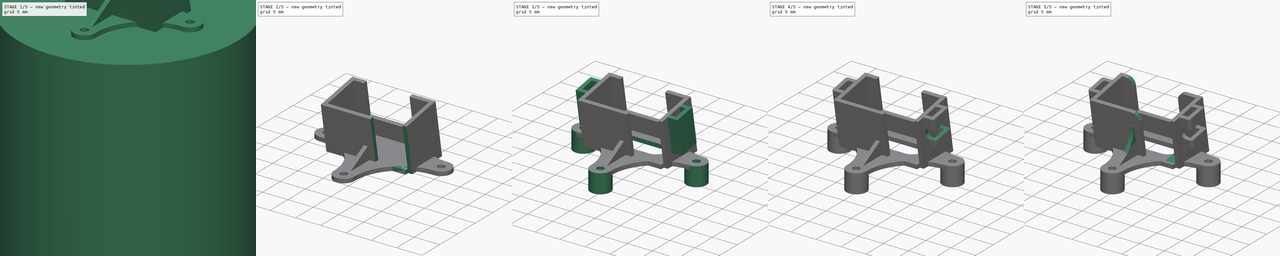
[diagram: build sequence overview — one tinted view per stage of 5, left to right]
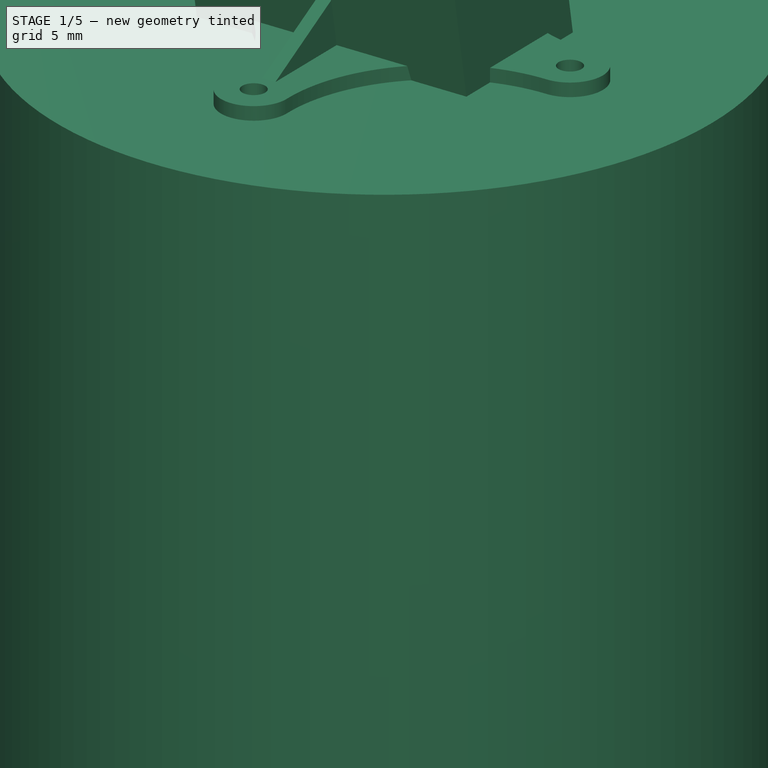
[diagram: stage 1 of 5 — iso view after this stage's code; geometry added in this stage tinted green]
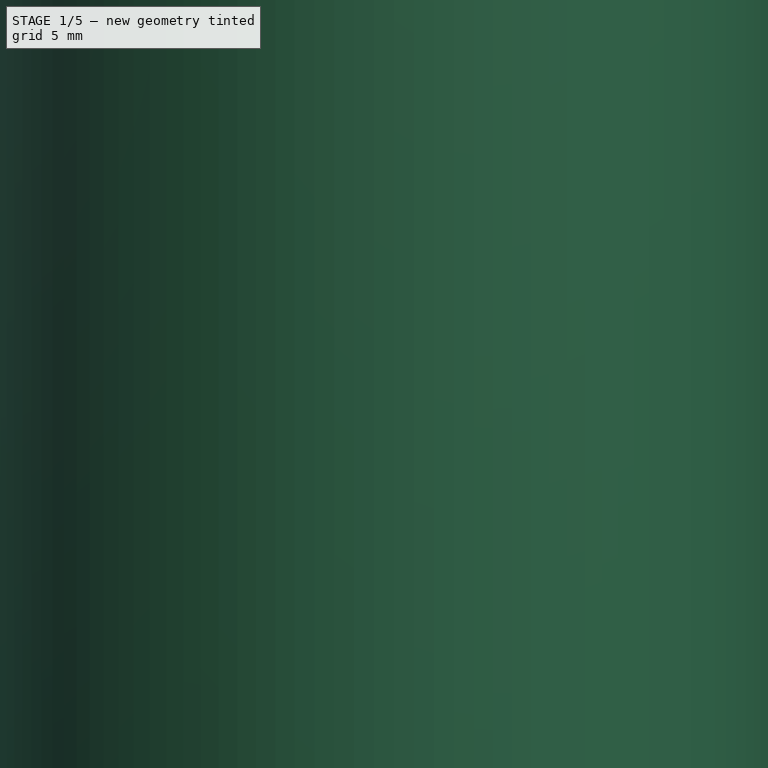
[diagram: stage 1 of 5 — front view after this stage's code; geometry added in this stage tinted green]
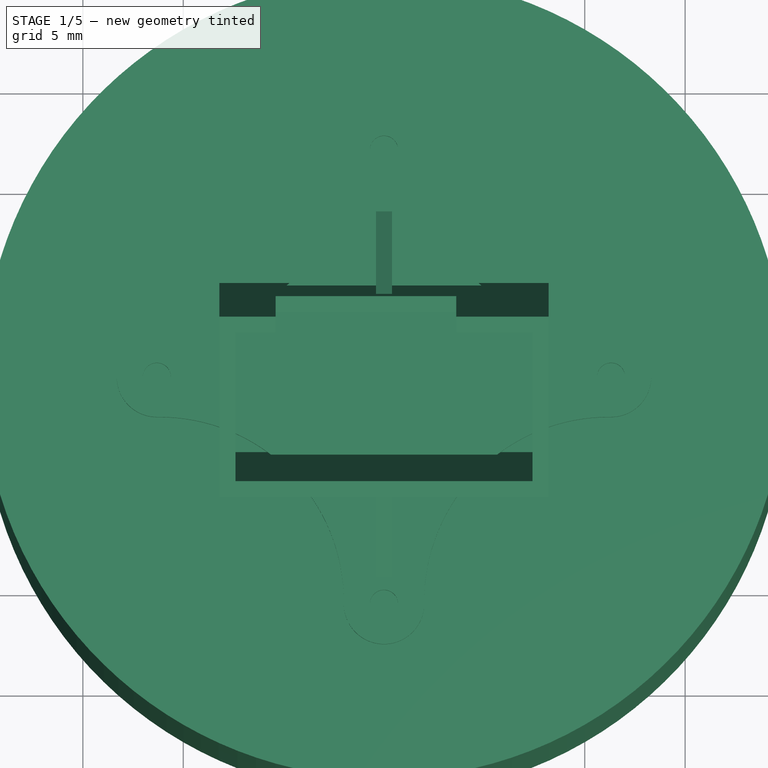
[diagram: stage 1 of 5 — top view after this stage's code; geometry added in this stage tinted green]
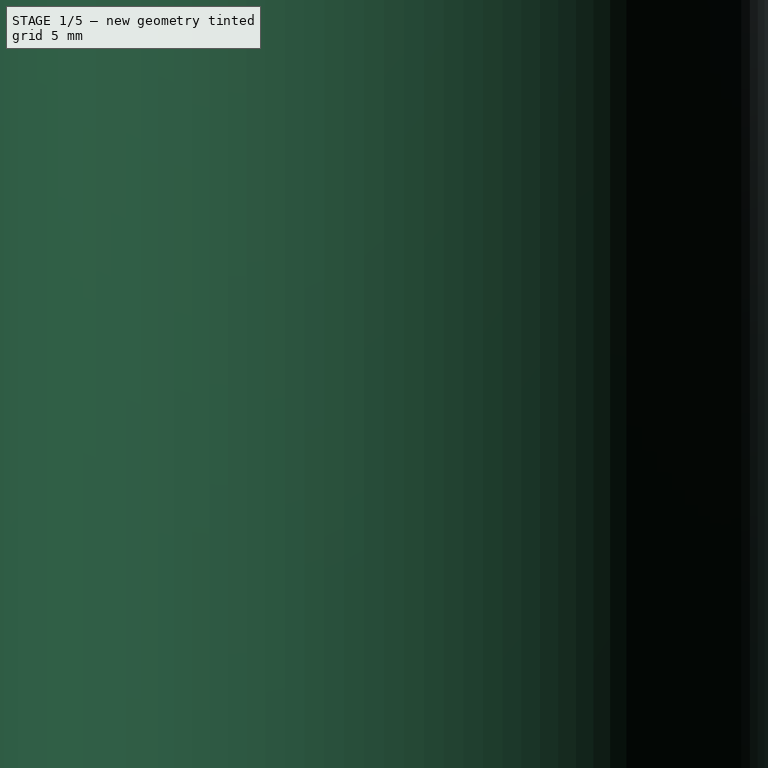
[diagram: stage 1 of 5 — right view after this stage's code; geometry added in this stage tinted green]
FCSTD DOCUMENT  (FreeCAD 0.16R6707 (Git))
Label: cam_holder_10
License: All rights reserved
LicenseURL: http://en.wikipedia.org/wiki/All_rights_reserved
objects: Sketcher::SketchObject×13, PartDesign::Pad×9, PartDesign::Fillet×5, PartDesign::Pocket×4, Part::MultiFuse×2, PartDesign::Mirrored×2, Part::Cut×1
note: 49 computed .brp shape members not serialized (recipe doc carries the construction recipe); baked Part::Feature solids carry a one-line shape summary decoded from their .brp

FEATURE [Sketcher::SketchObject] Sketch
  sketch-geometry (24):
    g0: Circle [constr] CenterX=0 CenterY=11.3137 CenterZ=0 NormalX=0 NormalY=0 NormalZ=1 Radius=2
    g1: Circle CenterX=0 CenterY=11.3137 CenterZ=0 NormalX=0 NormalY=0 NormalZ=1 Radius=0.7
    g2: Circle CenterX=11.3137 CenterY=0 CenterZ=0 NormalX=0 NormalY=0 NormalZ=1 Radius=0.7
    g3: Circle [constr] CenterX=11.3137 CenterY=0 CenterZ=0 NormalX=0 NormalY=0 NormalZ=1 Radius=2
    g4: Circle CenterX=0 CenterY=-11.3137 CenterZ=0 NormalX=0 NormalY=0 NormalZ=1 Radius=0.7
    g5: Circle [constr] CenterX=0 CenterY=-11.3137 CenterZ=0 NormalX=0 NormalY=0 NormalZ=1 Radius=2
    g6: Circle CenterX=-11.3137 CenterY=0 CenterZ=0 NormalX=0 NormalY=0 NormalZ=1 Radius=0.7
    g7: Circle [constr] CenterX=-11.3137 CenterY=0 CenterZ=0 NormalX=0 NormalY=0 NormalZ=1 Radius=2
    g8: LineSegment [constr] StartX=-11.3137 StartY=0 StartZ=0 EndX=0 EndY=11.3137 EndZ=0
    g9: LineSegment [constr] StartX=11.3137 StartY=0 StartZ=0 EndX=0 EndY=11.3137 EndZ=0
    g10: LineSegment [constr] StartX=0 StartY=-11.3137 StartZ=0 EndX=11.3137 EndY=0 EndZ=0
    g11: LineSegment [constr] StartX=0 StartY=-11.3137 StartZ=0 EndX=-11.3137 EndY=0 EndZ=0
    g12: ArcOfCircle CenterX=-11.2017 CenterY=11.2017 CenterZ=0 NormalX=0 NormalY=0 NormalZ=1 Radius=9.20224 StartAngle=4.70239 EndAngle=6.29319
    g13: LineSegment [constr] StartX=-12.7279 StartY=1.41421 StartZ=0 EndX=-1.41421 EndY=12.7279 EndZ=0
    g14: LineSegment [constr] StartX=-1.9999 StartY=11.2937 StartZ=0 EndX=-11.2937 EndY=1.9999 EndZ=0
    g15: LineSegment [constr] StartX=-5.44797 StartY=8.69417 StartZ=0 EndX=-5.0237 EndY=8.2699 EndZ=0
    g16: ArcOfCircle CenterX=11.2017 CenterY=11.2017 CenterZ=0 NormalX=0 NormalY=0 NormalZ=1 Radius=9.20224 StartAngle=3.13159 EndAngle=4.72239
    g17: ArcOfCircle CenterX=0 CenterY=11.3137 CenterZ=0 NormalX=0 NormalY=0 NormalZ=1 Radius=2 StartAngle=6.27318 EndAngle=9.43478
    g18: Circle [constr] CenterX=0 CenterY=0 CenterZ=0 NormalX=0 NormalY=0 NormalZ=1 Radius=15.8416
    g19: ArcOfCircle CenterX=-11.2017 CenterY=-11.2017 CenterZ=0 NormalX=0 NormalY=0 NormalZ=1 Radius=9.20224 StartAngle=6.27318 EndAngle=7.86398
    g20: ArcOfCircle CenterX=11.2017 CenterY=-11.2017 CenterZ=0 NormalX=0 NormalY=0 NormalZ=1 Radius=9.20224 StartAngle=1.5608 EndAngle=3.15159
    g21: ArcOfCircle CenterX=11.3137 CenterY=0 CenterZ=0 NormalX=0 NormalY=0 NormalZ=1 Radius=2 StartAngle=4.70239 EndAngle=7.86398
    g22: ArcOfCircle CenterX=0 CenterY=-11.3137 CenterZ=0 NormalX=0 NormalY=0 NormalZ=1 Radius=2 StartAngle=3.13159 EndAngle=6.29319
    g23: ArcOfCircle CenterX=-11.3137 CenterY=0 CenterZ=0 NormalX=0 NormalY=0 NormalZ=1 Radius=2 StartAngle=1.5608 EndAngle=4.7224
  constraints (73):
    c: PointOnObject(g0,g-2)
    c: Coincident(g1,g0)
    c: Radius(g1) = 0.7
    c: Radius(g0) = 2
    c: PointOnObject(g2,g-1)
    c: Coincident(g3,g2)
    c: PointOnObject(g4,g-2)
    c: Coincident(g5,g4)
    c: PointOnObject(g6,g-1)
    c: Coincident(g7,g6)
    c: Equal(g7,g3)
    c: Equal(g3,g5)
    c: Equal(g5,g0)
    c: Equal(g6,g2)
    c: Equal(g2,g4)
    c: Equal(g4,g1)
    c: Coincident(g8,g6)
    c: Coincident(g8,g0)
    c: Coincident(g9,g0)
    c: Coincident(g10,g4)
    c: Coincident(g11,g4)
    c: Coincident(g11,g6)
    c: Equal(g11,g8)
    c: Equal(g8,g9)
    c: Equal(g9,g10)
    c: Coincident(g2,g10)
    c: Coincident(g2,g9)
    c: Perpendicular(g10,g9)
    c: Distance(g8) = 16
    c: Tangent(g12,g7)
    c: PointOnObject(g13,g7)
    c: PointOnObject(g13,g0)
    c: Tangent(g13,g7)
    c: Tangent(g13,g0)
    c: PointOnObject(g15,g13)
    c: PointOnObject(g15,g14)
    c: Perpendicular(g13,g15)
    c: Perpendicular(g14,g15)
    c: PointOnObject(g12,g14)
    c: Coincident(g12,g14)
    c: Coincident(g12,g14)
    c: PointOnObject(g12,g0)
    c: Distance(g15) = 0.6
    c: PointOnObject(g16,g3)
    c: Tangent(g0,g16)
    c: Coincident(g17,g0)
    c: Coincident(g17,g12)
    c: Coincident(g17,g16)
    c: Tangent(g16,g3)
    c: Tangent(g12,g0)
    c: PointOnObject(g12,g18)
    c: Coincident(g18,g-1)
    c: PointOnObject(g16,g18)
    c: PointOnObject(g19,g7)
    c: PointOnObject(g19,g5)
    c: PointOnObject(g19,g18)
    c: Tangent(g7,g19)
    c: Tangent(g19,g5)
    c: PointOnObject(g20,g5)
    c: PointOnObject(g20,g3)
    c: Tangent(g20,g5)
    c: Tangent(g20,g3)
    c: PointOnObject(g20,g18)
    c: Coincident(g17,g14)
    c: Coincident(g21,g2)
    c: Coincident(g21,g16)
    c: Coincident(g21,g20)
    c: Coincident(g22,g4)
    c: Coincident(g22,g20)
    c: Coincident(g22,g19)
    c: Coincident(g23,g6)
    c: Coincident(g23,g12)
    c: Coincident(g23,g19)
FEATURE [PartDesign::Pad] Pad
  Length = 0.8
  Length2 = 100
  Sketch = -> Sketch
  Type = 0
FEATURE [Sketcher::SketchObject] Sketch001
  Placement = pos=(0,0,0.4) rot=(1,0,0;0.174533rad)
  sketch-geometry (10):
    g0: LineSegment StartX=-7.4 StartY=3.75 StartZ=0 EndX=7.4 EndY=3.75 EndZ=0
    g1: LineSegment StartX=7.4 StartY=3.75 StartZ=0 EndX=7.4 EndY=-3.75 EndZ=0
    g2: LineSegment StartX=7.4 StartY=-3.75 StartZ=0 EndX=-7.4 EndY=-3.75 EndZ=0
    g3: LineSegment StartX=-7.4 StartY=-3.75 StartZ=0 EndX=-7.4 EndY=3.75 EndZ=0
    g4: LineSegment StartX=-8.2 StartY=4.55 StartZ=0 EndX=8.2 EndY=4.55 EndZ=0
    g5: LineSegment StartX=8.2 StartY=4.55 StartZ=0 EndX=8.2 EndY=-4.55 EndZ=0
    g6: LineSegment StartX=8.2 StartY=-4.55 StartZ=0 EndX=-8.2 EndY=-4.55 EndZ=0
    g7: LineSegment StartX=-8.2 StartY=-4.55 StartZ=0 EndX=-8.2 EndY=4.55 EndZ=0
    g8: LineSegment [constr] StartX=7.4 StartY=3.75 StartZ=0 EndX=7.4 EndY=4.55 EndZ=0
    g9: LineSegment [constr] StartX=7.4 StartY=-3.75 StartZ=0 EndX=8.2 EndY=-3.75 EndZ=0
  constraints (32):
    c: Coincident(g0,g1)
    c: Coincident(g1,g2)
    c: Coincident(g2,g3)
    c: Coincident(g3,g0)
    c: Horizontal(g0)
    c: Horizontal(g2)
    c: Vertical(g1)
    c: Vertical(g3)
    c: DistanceX(g0,g0) = 14.8
    c: DistanceY(g3,g3) = 7.5
    c: Symmetric(g0,g0,g-2)
    c: Symmetric(g0,g2,g-1)
    c: Coincident(g4,g5)
    c: Coincident(g5,g6)
    c: Coincident(g6,g7)
    c: Coincident(g7,g4)
    c: Horizontal(g4)
    c: Horizontal(g6)
    c: Vertical(g5)
    c: Vertical(g7)
    c: Symmetric(g5,g4,g-1)
    c: Symmetric(g4,g4,g-2)
    c: Vertical(g8)
    c: DistanceY(g8,g8) = 0.8
    c: PointOnObject(g8,g4)
    c: PointOnObject(g8,g0)
    c: PointOnObject(g9,g1)
    c: PointOnObject(g9,g5)
    c: Horizontal(g9)
    c: DistanceX(g9,g9) = 0.8
    c: Coincident(g9,g1)
    c: Coincident(g8,g0)
FEATURE [PartDesign::Pad] Pad001
  Length = 19
  Length2 = 100
  Midplane = true
  Placement = pos=(0,0,0.4) rot=(1,0,0;0.174533rad)
  Reversed = true
  Sketch = -> Sketch001
  Type = 0
FEATURE [Sketcher::SketchObject] Sketch002
  ExternalGeometry = -> [Pad001]
  Placement = pos=(0,-1.64966,9.75567) rot=(1,0,0;0.174533rad)
  Support = -> Pad001 [Face10]
  sketch-geometry (4):
    g0: LineSegment StartX=3.6 StartY=4.55 StartZ=0 EndX=3.6 EndY=3.75 EndZ=0
    g1: LineSegment StartX=-5.4 StartY=4.55 StartZ=0 EndX=3.6 EndY=4.55 EndZ=0
    g2: LineSegment StartX=-5.4 StartY=3.75 StartZ=0 EndX=3.6 EndY=3.75 EndZ=0
    g3: LineSegment StartX=-5.4 StartY=3.75 StartZ=0 EndX=-5.4 EndY=4.55 EndZ=0
  constraints (12):
    c: Vertical(g0)
    c: Coincident(g1,g0)
    c: Horizontal(g1)
    c: DistanceX(g1,g1) = 9
    c: Coincident(g2,g0)
    c: Coincident(g3,g2)
    c: Coincident(g3,g1)
    c: Vertical(g3)
    c: Perpendicular(g3,g2)
    c: PointOnObject(g-3,g1)
    c: PointOnObject(g-5,g2)
    c: Distance(g-5,g3) = 2
FEATURE [PartDesign::Pocket] Pocket
  Length = 6.5
  Placement = pos=(0,0,0.4) rot=(1,0,0;0.174533rad)
  Sketch = -> Sketch002
  Type = 0
FEATURE [Sketcher::SketchObject] Sketch004
  Placement = pos=(0,0,0) rot=(1,0,0;3.14159rad)
  Support = -> Pad [Face13]
  sketch-geometry (1):
    g0: Circle CenterX=0 CenterY=0 CenterZ=0 NormalX=0 NormalY=0 NormalZ=1 Radius=20
  constraints (2):
    c: Radius(g0) = 20
    c: Coincident(g0,g-1)
FEATURE [PartDesign::Pad] Pad002
  Length = 50
  Length2 = 100
  Sketch = -> Sketch004
  Type = 0
FEATURE [Sketcher::SketchObject] Sketch007
  Placement = pos=(0,0,0) rot=(0.57735,0.57735,0.57735;2.0944rad)
  sketch-geometry (16):
    g0: LineSegment StartX=-10 StartY=0 StartZ=0 EndX=-10 EndY=-1 EndZ=0
    g1: LineSegment StartX=-4.5 StartY=0 StartZ=0 EndX=-10 EndY=-1 EndZ=0
    g2: LineSegment [constr] StartX=-10 StartY=0 StartZ=0 EndX=-4.5 EndY=0 EndZ=0
    g3: LineSegment [constr] StartX=-4.5 StartY=0 StartZ=0 EndX=0 EndY=0 EndZ=0
    g4: LineSegment StartX=-10 StartY=0 StartZ=0 EndX=-10 EndY=0.8 EndZ=0
    g5: LineSegment StartX=-10 StartY=0.8 StartZ=0 EndX=-5.11125 EndY=3.46659 EndZ=0
    g6: LineSegment [constr] StartX=-4.5 StartY=0 StartZ=0 EndX=-4.5 EndY=3.8 EndZ=0
    g7: LineSegment StartX=9.5 StartY=-1.26646 StartZ=0 EndX=9.5 EndY=0 EndZ=0
    g8: LineSegment StartX=9.5 StartY=0 StartZ=0 EndX=3.2 EndY=4 EndZ=0
    g9: LineSegment [constr] StartX=3.2 StartY=4 StartZ=0 EndX=3.2 EndY=0 EndZ=0
    g10: LineSegment StartX=3.2 StartY=0 StartZ=0 EndX=9.5 EndY=-1.26646 EndZ=0
    g11: LineSegment [constr] StartX=0 StartY=0 StartZ=0 EndX=3.2 EndY=0 EndZ=0
    g12: LineSegment [constr] StartX=3.2 StartY=0 StartZ=0 EndX=9.5 EndY=0 EndZ=0
    g13: LineSegment StartX=-4.5 StartY=0 StartZ=0 EndX=-5.11125 EndY=3.46659 EndZ=0
    g14: LineSegment StartX=3.2 StartY=4 StartZ=0 EndX=3.90531 EndY=0 EndZ=0
    g15: LineSegment StartX=3.2 StartY=0 StartZ=0 EndX=3.90531 EndY=0 EndZ=0
  constraints (43):
    c: PointOnObject(g0,g-1)
    c: Vertical(g0)
    c: Coincident(g2,g1)
    c: Horizontal(g2)
    c: Coincident(g0,g1)
    c: DistanceY(g0,g0) = 1
    c: Coincident(g3,g1)
    c: Coincident(g3,g-1)
    c: Horizontal(g3)
    c: DistanceX(g3,g3) = 4.5
    c: Coincident(g4,g0)
    c: Vertical(g4)
    c: Coincident(g5,g4)
    c: Coincident(g6,g1)
    c: Vertical(g6)
    c: DistanceY(g4,g4) = 0.8
    c: DistanceY(g6,g6) = 3.8
    c: Coincident(g2,g0)
    c: DistanceX(g2,g2) = 5.5
    c: Vertical(g7)
    c: Coincident(g8,g7)
    c: Coincident(g9,g8)
    c: PointOnObject(g9,g-1)
    c: Coincident(g10,g9)
    c: Coincident(g10,g7)
    c: Vertical(g9)
    c: Coincident(g11,g-1)
    c: Coincident(g11,g9)
    c: DistanceX(g11,g11) = 3.2
    c: PointOnObject(g7,g11)
    c: Coincident(g12,g9)
    c: Coincident(g12,g7)
    c: DistanceX(g12,g12) = 6.3
    c: Coincident(g13,g1)
    c: Angle(g6,g13) = 0.174533
    c: Coincident(g5,g13)
    c: Coincident(g14,g8)
    c: Coincident(g15,g9)
    c: Coincident(g15,g14)
    c: Horizontal(g15)
    c: Angle(g9,g14) = 0.174533
    c: DistanceY(g9,g9) = 4
    c: PointOnObject(g6,g5)
FEATURE [PartDesign::Pad] Pad005
  Length = 0.8
  Length2 = 100
  Midplane = true
  Placement = pos=(0,0,0) rot=(0.57735,0.57735,0.57735;2.0944rad)
  Sketch = -> Sketch007
  Type = 0
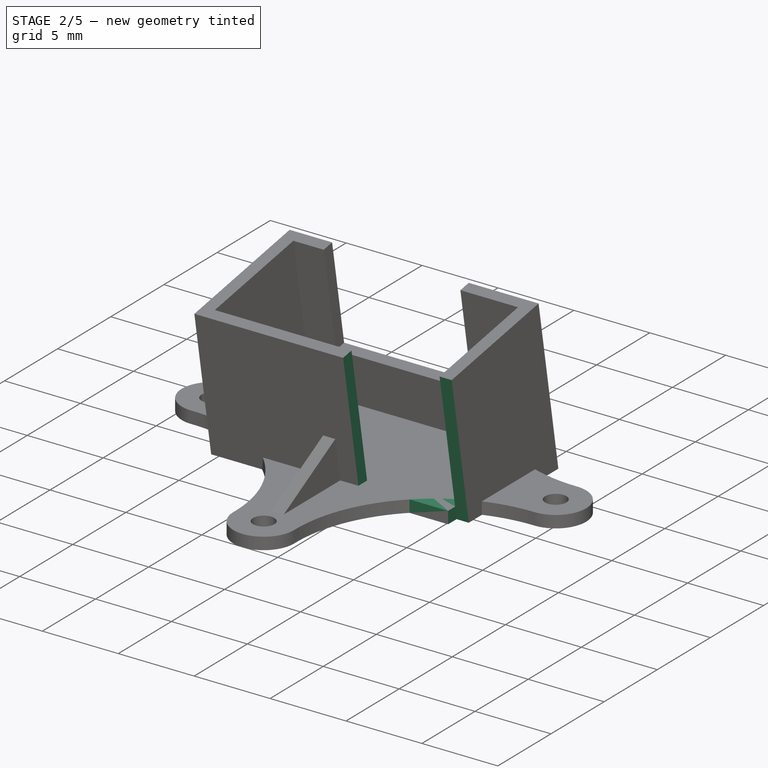
[diagram: stage 2 of 5 — iso view after this stage's code; geometry added in this stage tinted green]
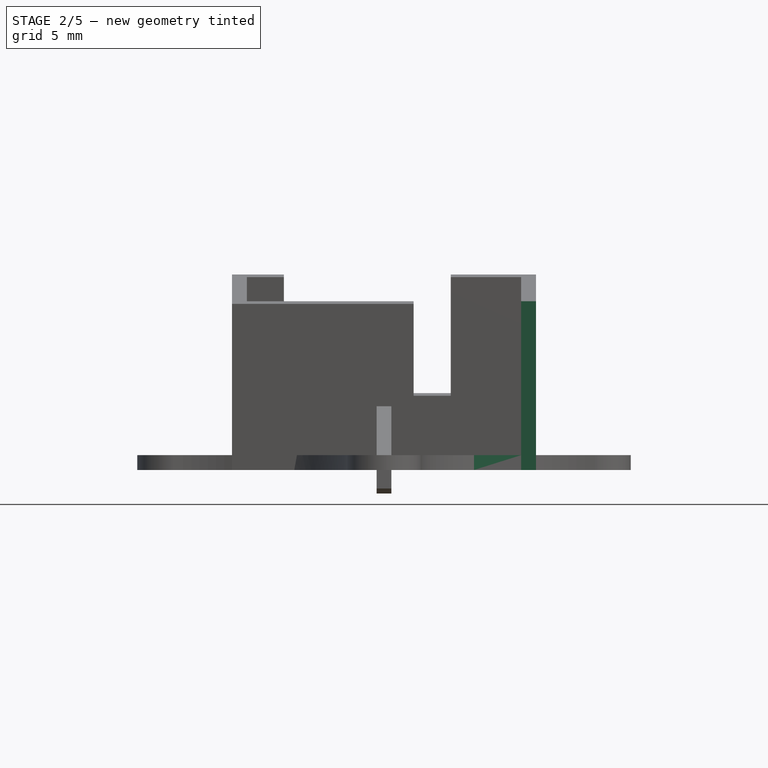
[diagram: stage 2 of 5 — front view after this stage's code; geometry added in this stage tinted green]
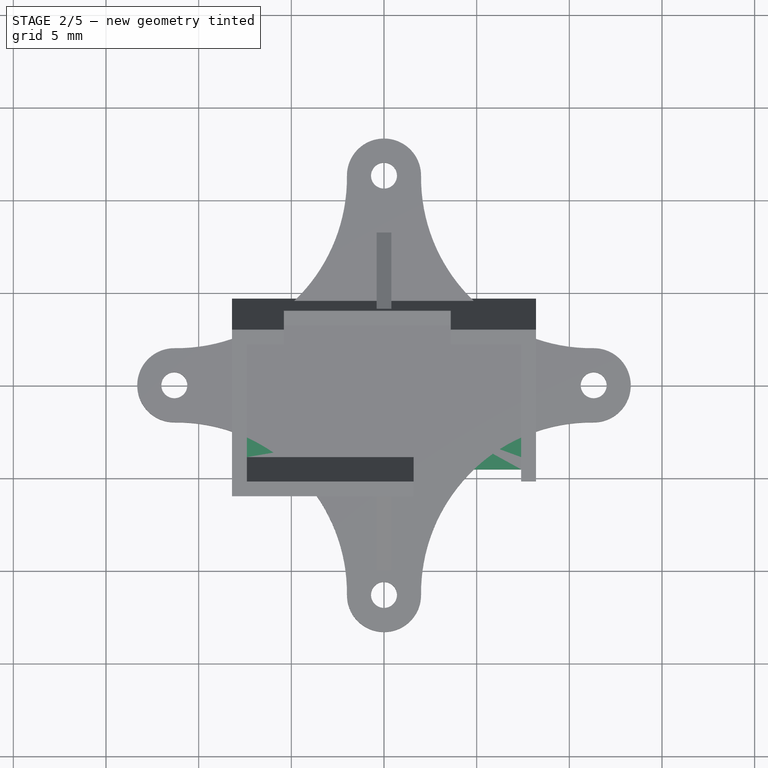
[diagram: stage 2 of 5 — top view after this stage's code; geometry added in this stage tinted green]
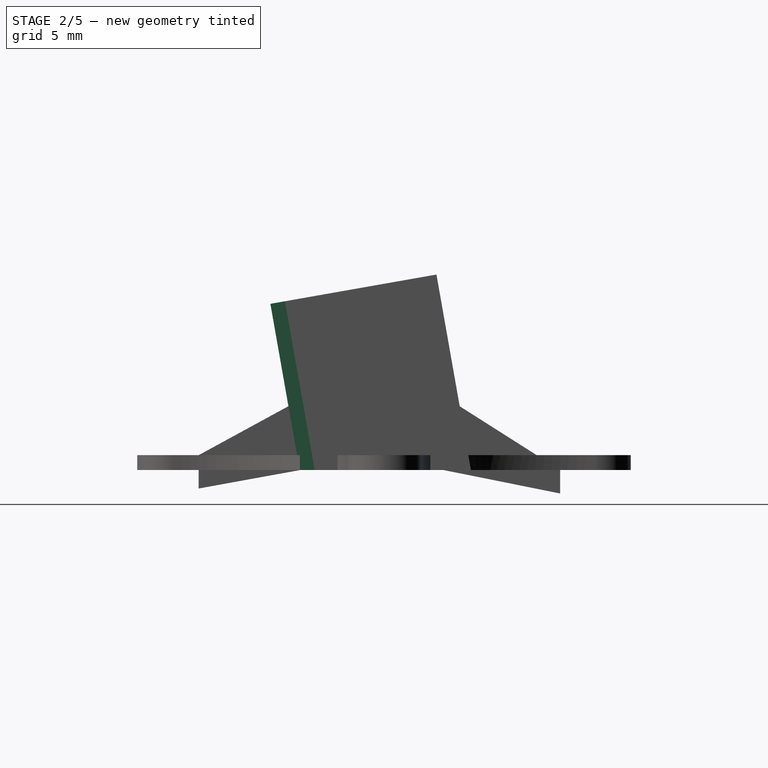
[diagram: stage 2 of 5 — right view after this stage's code; geometry added in this stage tinted green]
FEATURE [Sketcher::SketchObject] Sketch003
  ExternalGeometry = -> [Pocket]
  Placement = pos=(0,-1.64966,9.75567) rot=(1,0,0;0.174533rad)
  Support = -> Pocket [Face4]
  sketch-geometry (4):
    g0: LineSegment StartX=8.2 StartY=-4.55 StartZ=0 EndX=1.6 EndY=-4.55 EndZ=0
    g1: LineSegment StartX=1.6 StartY=-4.55 StartZ=0 EndX=1.6 EndY=-3.75 EndZ=0
    g2: LineSegment StartX=1.6 StartY=-3.75 StartZ=0 EndX=8.2 EndY=-3.75 EndZ=0
    g3: LineSegment StartX=8.2 StartY=-3.75 StartZ=0 EndX=8.2 EndY=-4.55 EndZ=0
  constraints (11):
    c: Coincident(g0,g1)
    c: Coincident(g1,g2)
    c: Coincident(g2,g3)
    c: Coincident(g3,g0)
    c: Horizontal(g0)
    c: Horizontal(g2)
    c: Vertical(g1)
    c: Vertical(g3)
    c: Coincident(g0,g-4)
    c: PointOnObject(g-5,g2)
    c: Distance(g-3,g1) = 9.8
FEATURE [PartDesign::Pocket] Pocket001
  Length = 0
  Placement = pos=(0,0,0.4) rot=(1,0,0;0.174533rad)
  Sketch = -> Sketch003
  Type = 2
FEATURE [Part::Cut] Cut
  Base = -> Pocket001
  Tool = -> Pad002
FEATURE [Part::MultiFuse] Fusion
  Shapes = -> [Cut,Pad]
FEATURE [Sketcher::SketchObject] Sketch005
  ExternalGeometry = -> [Fusion]
  Placement = pos=(0,0,0) rot=(1,0,0;3.14159rad)
  Support = -> Fusion [Face39]
  sketch-geometry (7):
    g0: LineSegment [constr] StartX=-7.4 StartY=3.73732 StartZ=0 EndX=7.4 EndY=3.73732 EndZ=0
    g1: LineSegment StartX=7.4 StartY=-3.87838 StartZ=0 EndX=7.4 EndY=3.73732 EndZ=0
    g2: LineSegment StartX=7.4 StartY=-3.87838 StartZ=0 EndX=-7.4 EndY=-3.87838 EndZ=0
    g3: LineSegment StartX=-7.4 StartY=-3.87838 StartZ=0 EndX=-7.4 EndY=3.73732 EndZ=0
    g4: LineSegment StartX=-7.4 StartY=3.73732 StartZ=0 EndX=-7.4 EndY=4.53732 EndZ=0
    g5: LineSegment StartX=7.4 StartY=3.73732 StartZ=0 EndX=7.4 EndY=4.53732 EndZ=0
    g6: LineSegment StartX=-7.4 StartY=4.53732 StartZ=0 EndX=7.4 EndY=4.53732 EndZ=0
  constraints (16):
    c: Coincident(g0,g-3)
    c: Coincident(g0,g-6)
    c: Coincident(g1,g-5)
    c: Coincident(g1,g0)
    c: Coincident(g2,g1)
    c: Coincident(g2,g-4)
    c: Coincident(g3,g2)
    c: Coincident(g3,g0)
    c: Coincident(g4,g0)
    c: Vertical(g4)
    c: Coincident(g5,g0)
    c: Vertical(g5)
    c: Coincident(g6,g4)
    c: Coincident(g6,g5)
    c: Horizontal(g6)
    c: DistanceY(g4,g4) = 0.8
FEATURE [PartDesign::Pad] Pad003
  Length = 0.8
  Length2 = 100
  Reversed = true
  Sketch = -> Sketch005
  Type = 0
  UpToFace = -> Fusion [Face21]
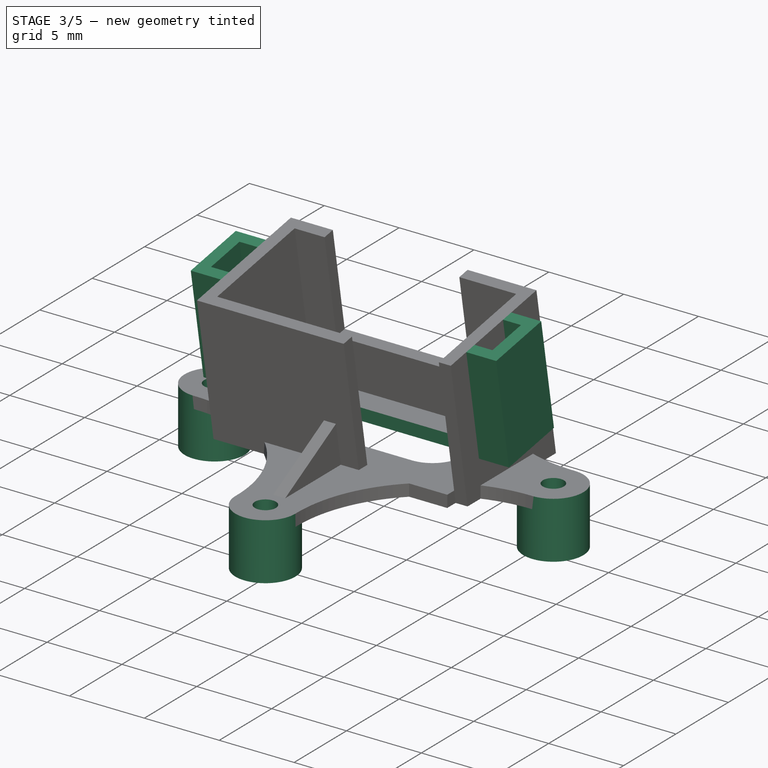
[diagram: stage 3 of 5 — iso view after this stage's code; geometry added in this stage tinted green]
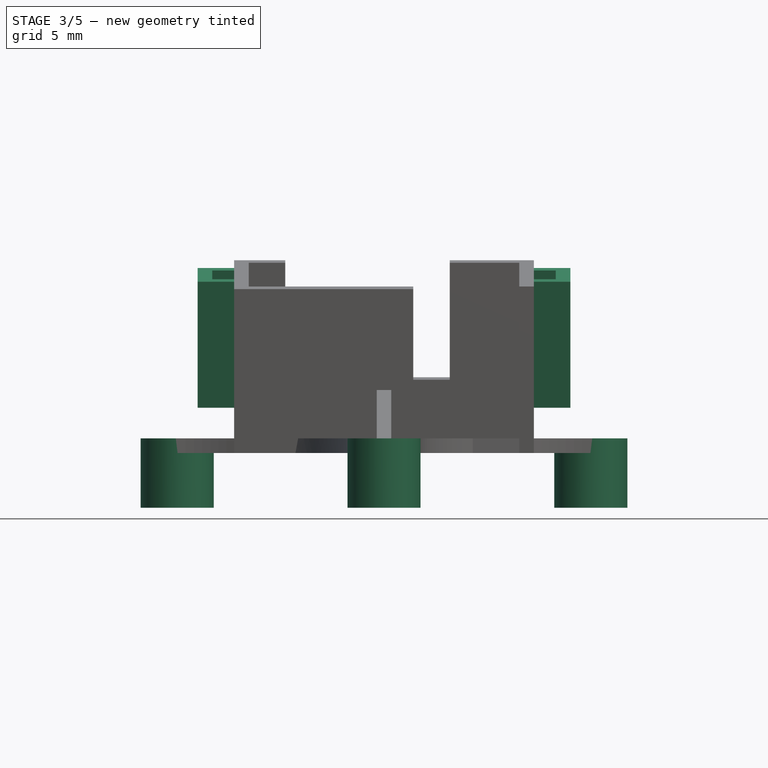
[diagram: stage 3 of 5 — front view after this stage's code; geometry added in this stage tinted green]
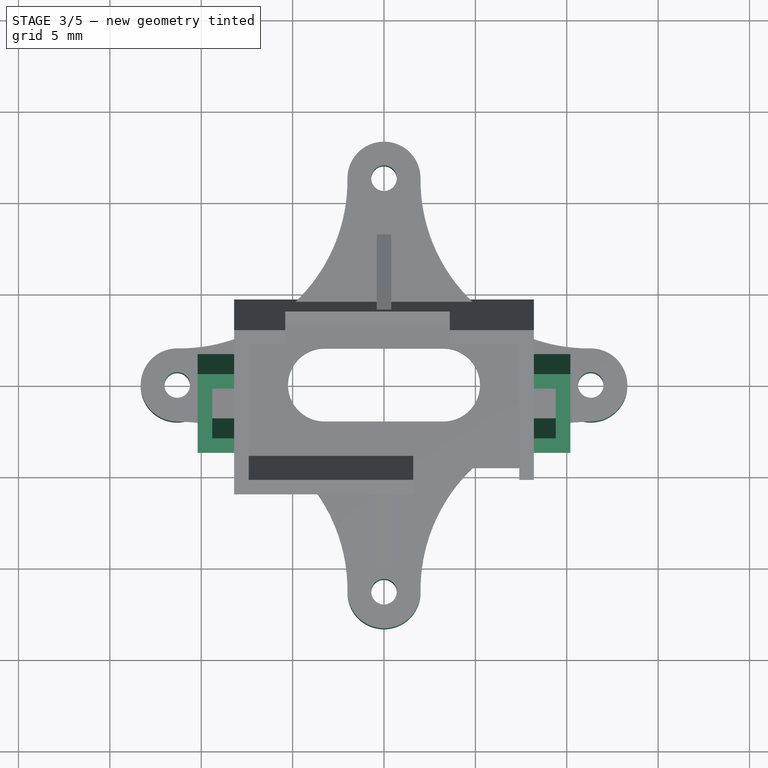
[diagram: stage 3 of 5 — top view after this stage's code; geometry added in this stage tinted green]
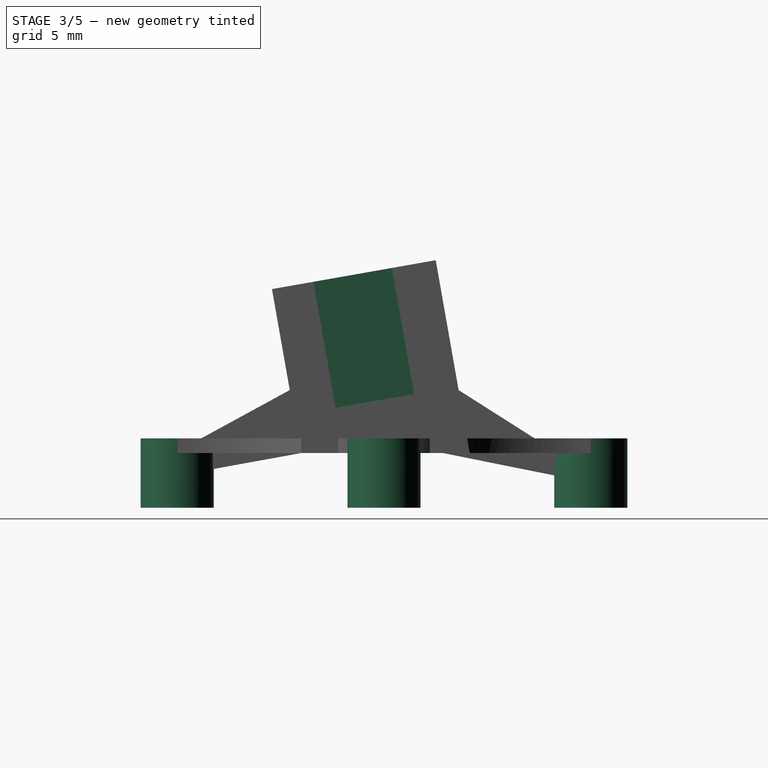
[diagram: stage 3 of 5 — right view after this stage's code; geometry added in this stage tinted green]
FEATURE [Sketcher::SketchObject] Sketch006
  ExternalGeometry = -> [Pad003]
  Placement = pos=(0,0,0) rot=(1,0,0;3.14159rad)
  Support = -> Pad003 [Face10]
  sketch-geometry (8):
    g0: Circle CenterX=11.3137 CenterY=0 CenterZ=0 NormalX=0 NormalY=0 NormalZ=1 Radius=2
    g1: Circle CenterX=0 CenterY=-11.3137 CenterZ=0 NormalX=0 NormalY=0 NormalZ=1 Radius=2
    g2: Circle CenterX=-11.3137 CenterY=0 CenterZ=0 NormalX=0 NormalY=0 NormalZ=1 Radius=0.7
    g3: Circle CenterX=0 CenterY=11.3137 CenterZ=0 NormalX=0 NormalY=0 NormalZ=1 Radius=0.7
    g4: Circle CenterX=-11.3137 CenterY=0 CenterZ=0 NormalX=0 NormalY=0 NormalZ=1 Radius=2
    g5: Circle CenterX=0 CenterY=-11.3137 CenterZ=0 NormalX=0 NormalY=0 NormalZ=1 Radius=0.7
    g6: Circle CenterX=11.3137 CenterY=0 CenterZ=0 NormalX=0 NormalY=0 NormalZ=1 Radius=0.7
    g7: Circle CenterX=0 CenterY=11.3137 CenterZ=0 NormalX=0 NormalY=0 NormalZ=1 Radius=2
  constraints (17):
    c: PointOnObject(g3,g-2)
    c: Coincident(g4,g2)
    c: Coincident(g5,g1)
    c: Coincident(g6,g0)
    c: Coincident(g7,g3)
    c: Equal(g5,g-6)
    c: Equal(g-6,g6)
    c: Equal(g6,g3)
    c: Equal(g3,g2)
    c: Coincident(g1,g-6)
    c: Coincident(g0,g-5)
    c: Coincident(g2,g-4)
    c: Coincident(g3,g-3)
    c: Equal(g-7,g1)
    c: Equal(g1,g0)
    c: Equal(g0,g7)
    c: Equal(g7,g4)
FEATURE [PartDesign::Pad] Pad004
  Length = 3
  Length2 = 100
  Sketch = -> Sketch006
  Type = 0
FEATURE [Part::MultiFuse] Fusion001
  Shapes = -> [Pad004,Pad005]
FEATURE [Sketcher::SketchObject] Sketch008
  ExternalGeometry = -> [Fusion001]
  Placement = pos=(0,-1.71806,9.74361) rot=(1,0,0;0.174533rad)
  Support = -> Fusion001 [Face1]
  expr: Constraints[15] = 1.2
  sketch-geometry (11):
    g0: LineSegment StartX=-8.2 StartY=2.18 StartZ=0 EndX=-10.2 EndY=2.18 EndZ=0
    g1: LineSegment StartX=-10.2 StartY=2.18 StartZ=0 EndX=-10.2 EndY=-2.18 EndZ=0
    g2: LineSegment StartX=-10.2 StartY=-2.18 StartZ=0 EndX=-8.2 EndY=-2.18 EndZ=0
    g3: LineSegment StartX=-8.2 StartY=2.18 StartZ=0 EndX=-8.2 EndY=1.38 EndZ=0
    g4: LineSegment StartX=-8.2 StartY=1.38 StartZ=0 EndX=-9.4 EndY=1.38 EndZ=0
    g5: LineSegment StartX=-9.4 StartY=1.38 StartZ=0 EndX=-9.4 EndY=-1.38 EndZ=0
    g6: LineSegment StartX=-9.4 StartY=-1.38 StartZ=0 EndX=-8.2 EndY=-1.38 EndZ=0
    g7: LineSegment StartX=-8.2 StartY=-1.38 StartZ=0 EndX=-8.2 EndY=-2.18 EndZ=0
    g8: LineSegment [constr] StartX=-9.4 StartY=1.38 StartZ=0 EndX=-8.2 EndY=-1.38 EndZ=0
    g9: LineSegment [constr] StartX=-8.2 StartY=1.38 StartZ=0 EndX=-9.4 EndY=-1.38 EndZ=0
    g10: GeomPoint [constr] X=-8.8 Y=0 Z=0
  constraints (30):
    c: Horizontal(g0)
    c: Coincident(g1,g0)
    c: Vertical(g1)
    c: Coincident(g2,g1)
    c: Horizontal(g2)
    c: Coincident(g3,g0)
    c: Coincident(g4,g3)
    c: Horizontal(g4)
    c: Coincident(g5,g4)
    c: Vertical(g5)
    c: Coincident(g6,g5)
    c: Horizontal(g6)
    c: Coincident(g7,g6)
    c: Coincident(g7,g2)
    c: DistanceX(g0,g0) = 2
    c: DistanceX(g4,g4) = 1.2
    c: DistanceY(g3,g3) = 0.8
    c: DistanceY(g7,g7) = 0.8
    c: Coincident(g8,g4)
    c: Coincident(g8,g6)
    c: Coincident(g9,g3)
    c: Coincident(g9,g5)
    c: PointOnObject(g10,g8)
    c: PointOnObject(g10,g9)
    c: PointOnObject(g10,g-1)
    c: DistanceY(g5,g5) = 2.76
    c: Vertical(g3)
    c: Vertical(g7)
    c: Equal(g6,g4)
    c: PointOnObject(g-3,g3)
FEATURE [PartDesign::Pad] Pad006
  Length = 7
  Length2 = 100
  Reversed = true
  Sketch = -> Sketch008
  Type = 0
FEATURE [PartDesign::Mirrored] Mirrored
  MirrorPlane = -> Sketch008 [V_Axis]
  Originals = -> [Pad006]
FEATURE [Sketcher::SketchObject] Sketch011
  Placement = pos=(0,0,0.8) rot=(0,0,1;0rad)
  Support = -> Mirrored [Face50]
  sketch-geometry (4):
    g0: ArcOfCircle CenterX=-3.25 CenterY=0 CenterZ=0 NormalX=0 NormalY=0 NormalZ=1 Radius=2 StartAngle=1.5708 EndAngle=4.71239
    g1: ArcOfCircle CenterX=3.25 CenterY=0 CenterZ=0 NormalX=0 NormalY=0 NormalZ=1 Radius=2 StartAngle=4.71239 EndAngle=7.85398
    g2: LineSegment StartX=-3.25 StartY=-2 StartZ=0 EndX=3.25 EndY=-2 EndZ=0
    g3: LineSegment StartX=-3.25 StartY=2 StartZ=0 EndX=3.25 EndY=2 EndZ=0
  constraints (10):
    c: Tangent(g0,g3) = 1.5708
    c: Tangent(g0,g2) = -1.5708
    c: Tangent(g2,g1) = -1.5708
    c: Tangent(g3,g1) = 1.5708
    c: Horizontal(g2)
    c: Equal(g0,g1)
    c: PointOnObject(g0,g-1)
    c: Symmetric(g0,g1,g-2)
    c: DistanceX(g3,g3) = 6.5
    c: Radius(g0) = 2
FEATURE [PartDesign::Pocket] Pocket004
  Length = 2
  Midplane = true
  Sketch = -> Sketch011
  Type = 0
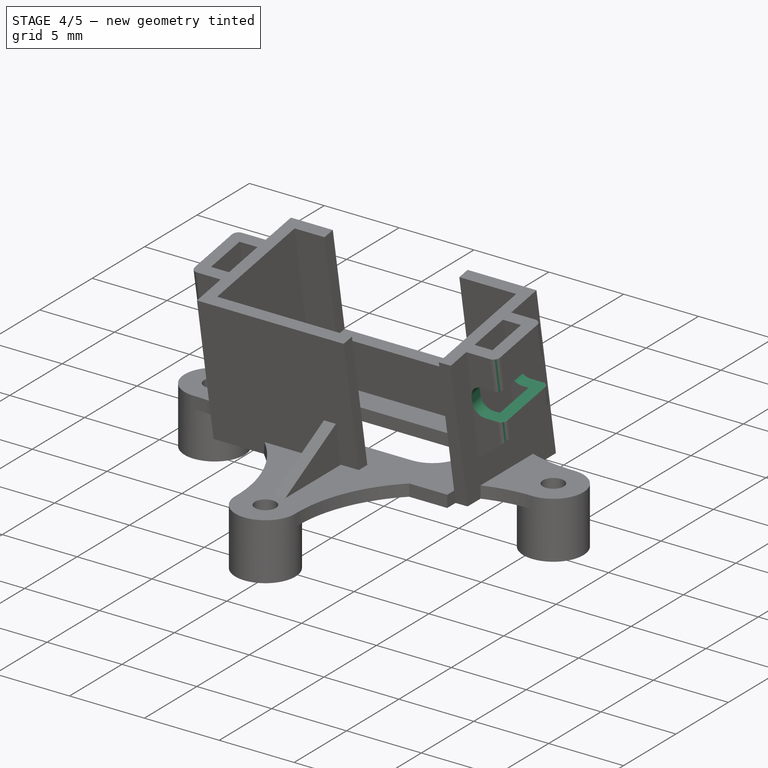
[diagram: stage 4 of 5 — iso view after this stage's code; geometry added in this stage tinted green]
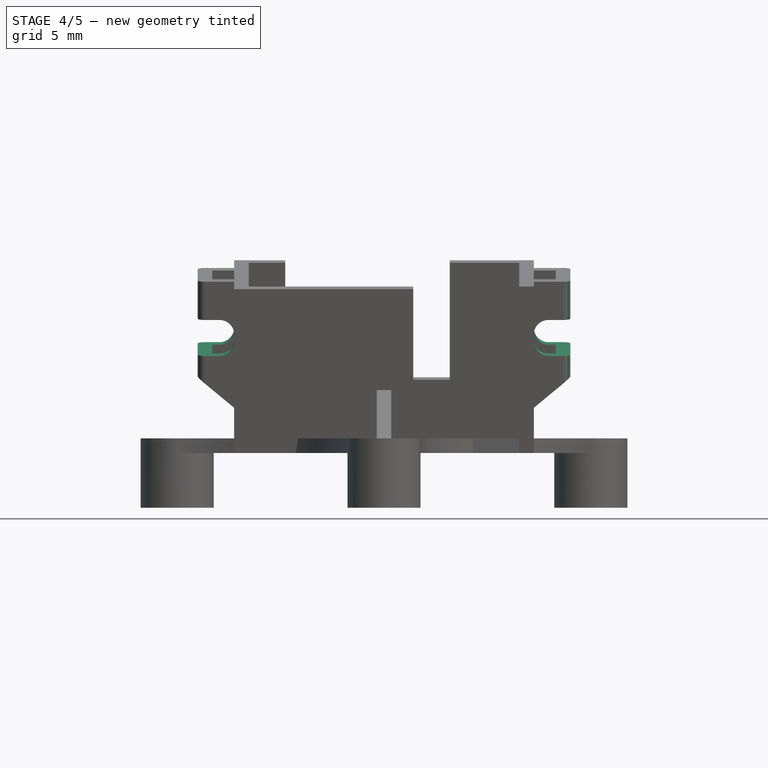
[diagram: stage 4 of 5 — front view after this stage's code; geometry added in this stage tinted green]
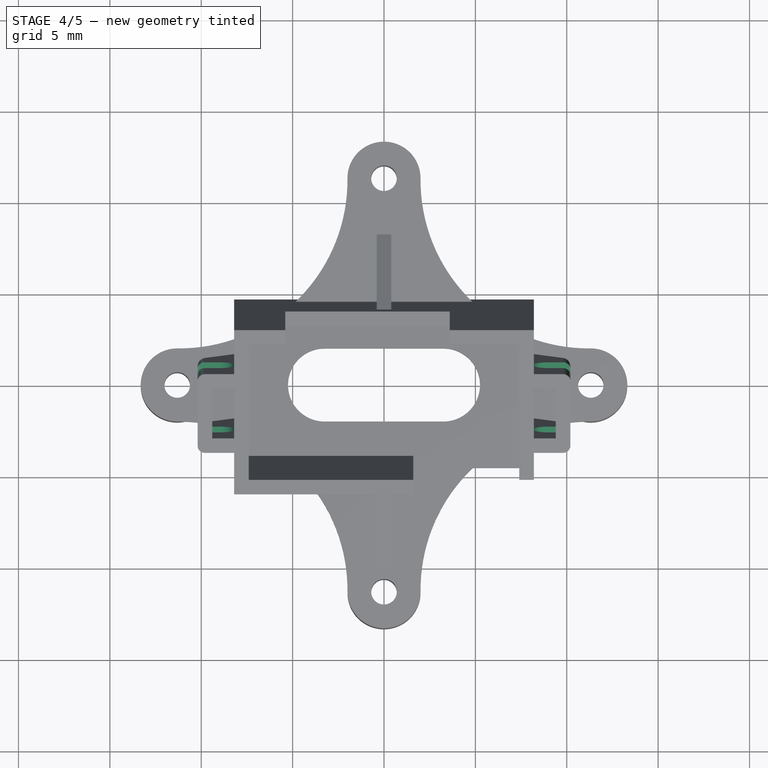
[diagram: stage 4 of 5 — top view after this stage's code; geometry added in this stage tinted green]
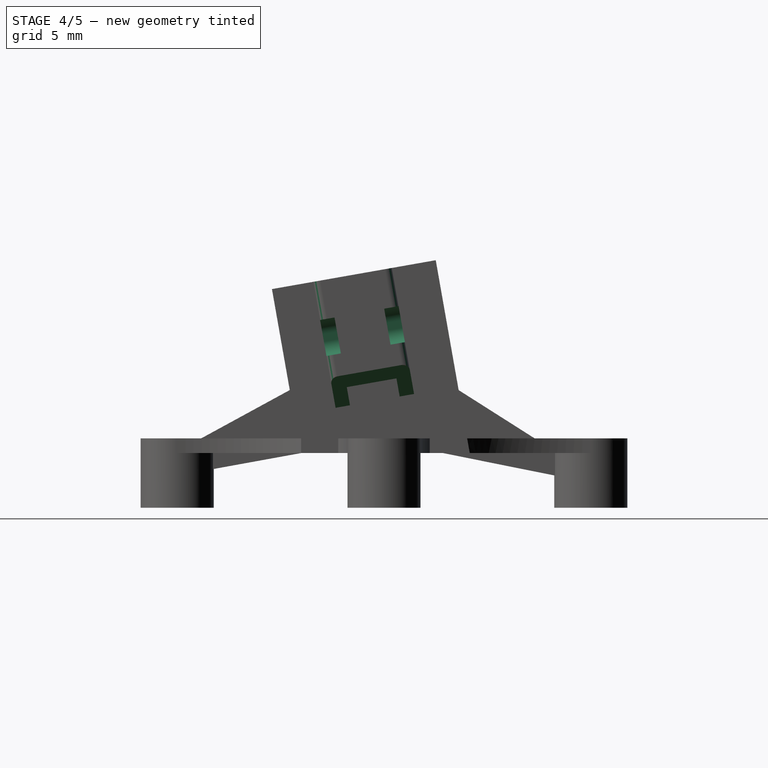
[diagram: stage 4 of 5 — right view after this stage's code; geometry added in this stage tinted green]
FEATURE [Sketcher::SketchObject] Sketch012
  ExternalGeometry = -> [Pocket004]
  Placement = pos=(0,2.14688,0.378553) rot=(0,0.642788,0.766044;3.14159rad)
  Support = -> Pocket004 [Face2]
  sketch-geometry (7):
    g0: LineSegment StartX=8.2 StartY=2.89392 StartZ=0 EndX=10.2 EndY=4.57212 EndZ=0
    g1: LineSegment StartX=10.2 StartY=4.57212 StartZ=0 EndX=10.2 EndY=2.89392 EndZ=0
    g2: LineSegment StartX=10.2 StartY=2.89392 StartZ=0 EndX=8.2 EndY=2.89392 EndZ=0
    g3: LineSegment StartX=8.2 StartY=7.77212 StartZ=0 EndX=10.2 EndY=7.77212 EndZ=0
    g4: LineSegment StartX=10.2 StartY=7.77212 StartZ=0 EndX=10.2 EndY=5.77212 EndZ=0
    g5: LineSegment StartX=10.2 StartY=5.77212 StartZ=0 EndX=8.2 EndY=5.77212 EndZ=0
    g6: LineSegment StartX=8.2 StartY=5.77212 StartZ=0 EndX=8.2 EndY=7.77212 EndZ=0
  constraints (19):
    c: Coincident(g0,g-3)
    c: PointOnObject(g0,g-4)
    c: Coincident(g1,g0)
    c: Coincident(g1,g-4)
    c: Coincident(g2,g1)
    c: Coincident(g2,g0)
    c: Coincident(g3,g4)
    c: Coincident(g4,g5)
    c: Coincident(g5,g6)
    c: Coincident(g6,g3)
    c: Horizontal(g3)
    c: Horizontal(g5)
    c: Vertical(g4)
    c: Vertical(g6)
    c: PointOnObject(g3,g-3)
    c: PointOnObject(g4,g-4)
    c: Distance(g0,g5) = 1.2
    c: Angle(g0,g-3) = 0.872665
    c: Distance(g3,g5) = 2
FEATURE [PartDesign::Pocket] Pocket005
  Length = 0
  Sketch = -> Sketch012
  Type = 3
  UpToFace = -> Pocket004 [Face3]
FEATURE [PartDesign::Mirrored] Mirrored001
  MirrorPlane = -> Sketch012 [V_Axis]
  Originals = -> [Pocket005]
FEATURE [PartDesign::Fillet] Fillet
  Base = -> Mirrored001 [Edge256,Edge240,Edge241,Edge255,Edge19,Edge15,Edge52,Edge50]
  Radius = 0.8
FEATURE [PartDesign::Fillet] Fillet001
  Base = -> Fillet [Edge17,Edge3,Edge125,Edge59,Edge272,Edge295,Edge302,Edge268]
  Radius = 0.4
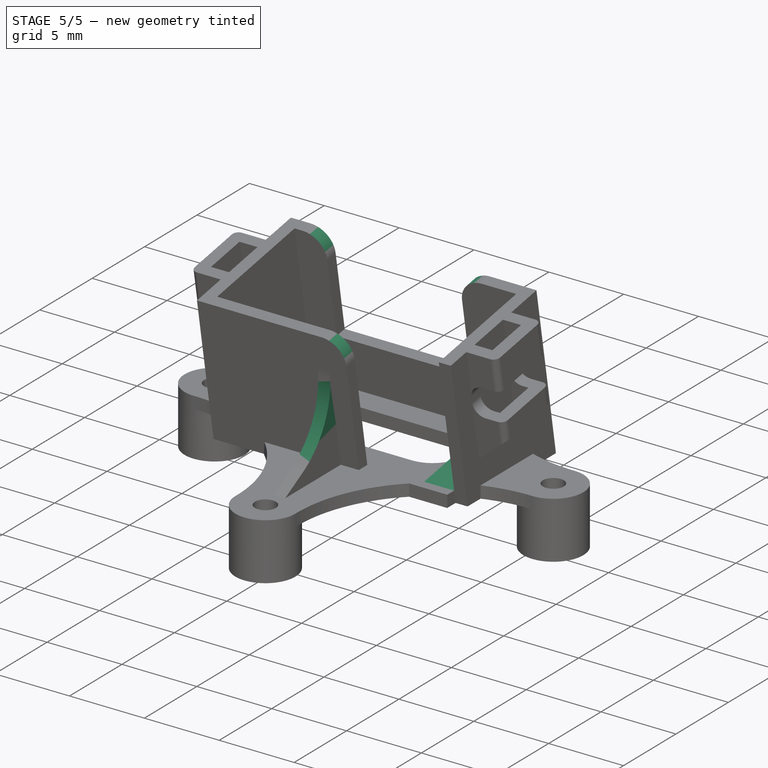
[diagram: stage 5 of 5 — iso view after this stage's code; geometry added in this stage tinted green]
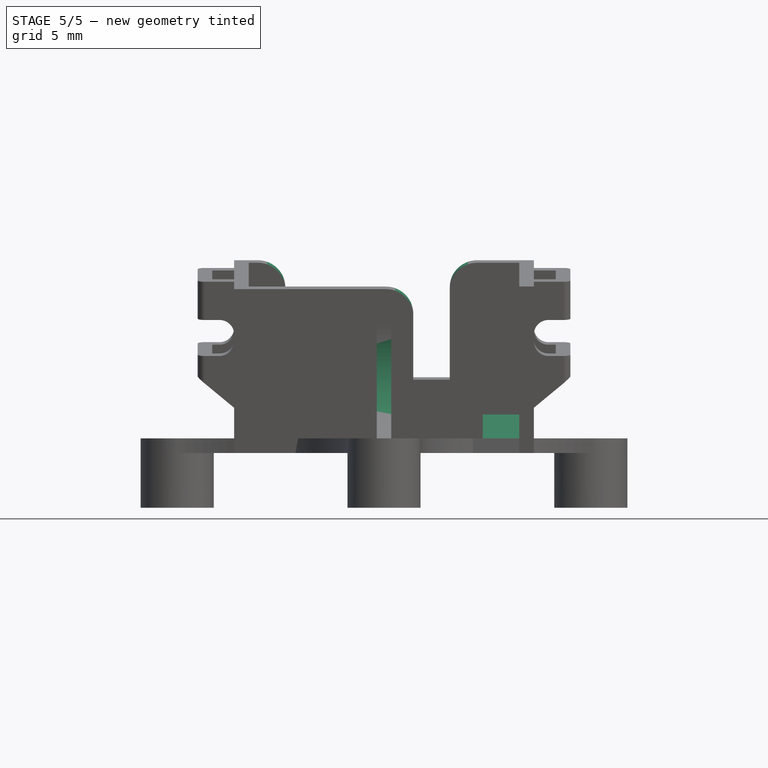
[diagram: stage 5 of 5 — front view after this stage's code; geometry added in this stage tinted green]
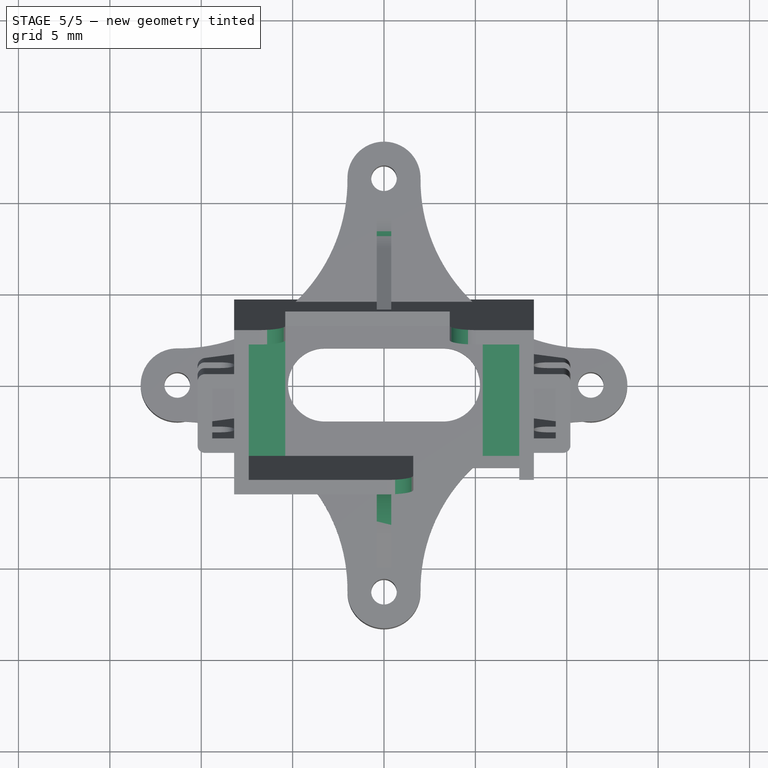
[diagram: stage 5 of 5 — top view after this stage's code; geometry added in this stage tinted green]
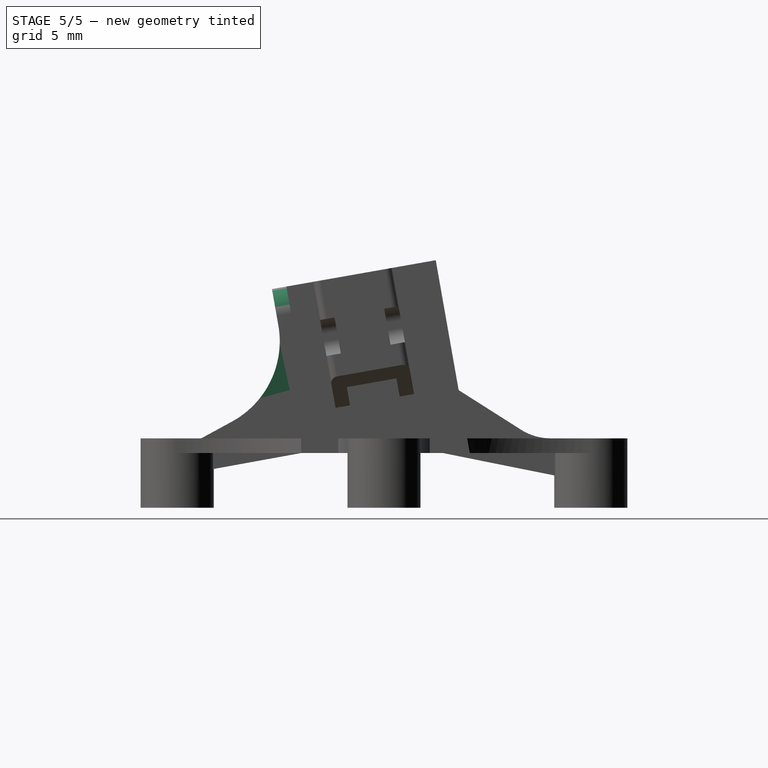
[diagram: stage 5 of 5 — right view after this stage's code; geometry added in this stage tinted green]
FEATURE [PartDesign::Fillet] Fillet002
  Base = -> Fillet001 [Edge67,Edge62,Edge218]
  Radius = 1.5
FEATURE [Sketcher::SketchObject] Sketch013
  ExternalGeometry = -> [Fillet002]
  Placement = pos=(-7.4,0,0) rot=(0.57735,0.57735,0.57735;2.0944rad)
  Support = -> Fillet002 [Face7]
  sketch-geometry (4):
    g0: LineSegment StartX=-3.87838 StartY=0.8 StartZ=0 EndX=3.50768 EndY=2.10236 EndZ=0
    g1: LineSegment StartX=3.50768 StartY=2.10236 StartZ=0 EndX=3.64874 EndY=1.30236 EndZ=0
    g2: LineSegment StartX=3.64874 StartY=1.30236 StartZ=0 EndX=-3.73732 EndY=0 EndZ=0
    g3: LineSegment StartX=-3.73732 StartY=0 StartZ=0 EndX=-3.87838 EndY=0.8 EndZ=0
  constraints (11):
    c: Coincident(g0,g-3)
    c: PointOnObject(g0,g-4)
    c: Coincident(g1,g0)
    c: PointOnObject(g1,g-4)
    c: Coincident(g2,g1)
    c: Coincident(g3,g2)
    c: Coincident(g3,g0)
    c: Parallel(g0,g2)
    c: Parallel(g3,g-4)
    c: DistanceY(g3,g3) = 0.8
    c: Angle(g-4,g0) = 1.5708
FEATURE [PartDesign::Pad] Pad007
  Length = 2
  Length2 = 100
  Sketch = -> Sketch013
  Type = 0
FEATURE [Sketcher::SketchObject] Sketch014
  ExternalGeometry = -> [Pad007]
  Placement = pos=(7.4,0,0) rot=(0.57735,-0.57735,-0.57735;2.0944rad)
  Support = -> Pad007 [Face40]
  sketch-geometry (4):
    g0: LineSegment StartX=-3.50768 StartY=2.10236 StartZ=0 EndX=3.87838 EndY=0.8 EndZ=0
    g1: LineSegment StartX=3.87838 StartY=0.8 StartZ=0 EndX=3.73732 EndY=0 EndZ=0
    g2: LineSegment StartX=3.73732 StartY=0 StartZ=0 EndX=-3.64874 EndY=1.30236 EndZ=0
    g3: LineSegment StartX=-3.64874 StartY=1.30236 StartZ=0 EndX=-3.50768 EndY=2.10236 EndZ=0
  constraints (9):
    c: Coincident(g0,g-3)
    c: Coincident(g0,g-3)
    c: Coincident(g1,g0)
    c: Coincident(g2,g1)
    c: Coincident(g3,g2)
    c: Coincident(g3,g0)
    c: Coincident(g2,g-4)
    c: Parallel(g2,g-3)
    c: Parallel(g1,g3)
FEATURE [PartDesign::Pad] Pad008
  Length = 2
  Length2 = 100
  Sketch = -> Sketch014
  Type = 0
FEATURE [PartDesign::Fillet] Fillet003
  Base = -> Pad008 [Edge96]
  Radius = 5
FEATURE [PartDesign::Fillet] Fillet004
  Base = -> Fillet003 [Edge279]
  Radius = 3
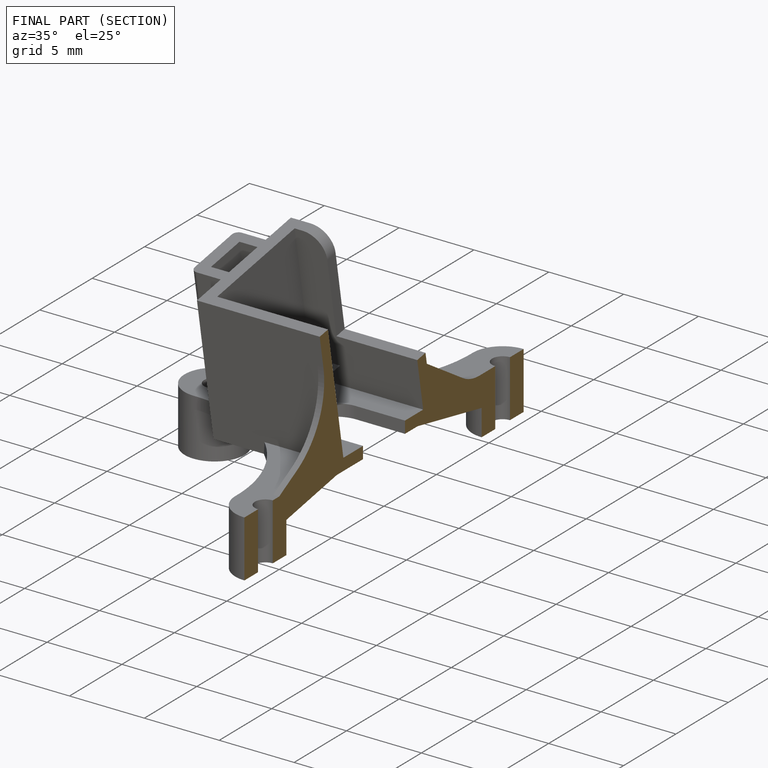
[diagram: finished part — half-section view (interior)]
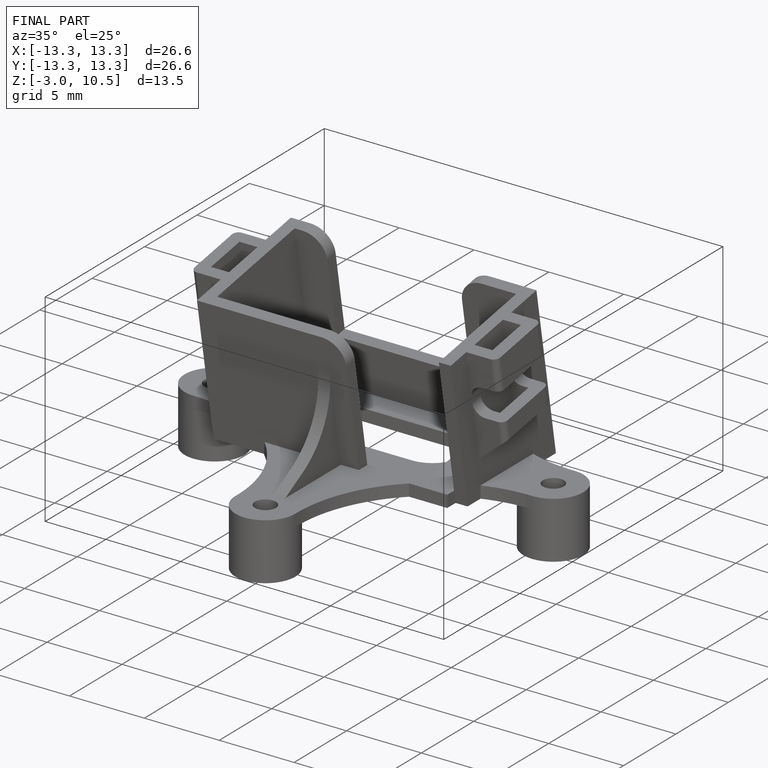
[diagram: finished part — iso view with bounding-box wireframe]
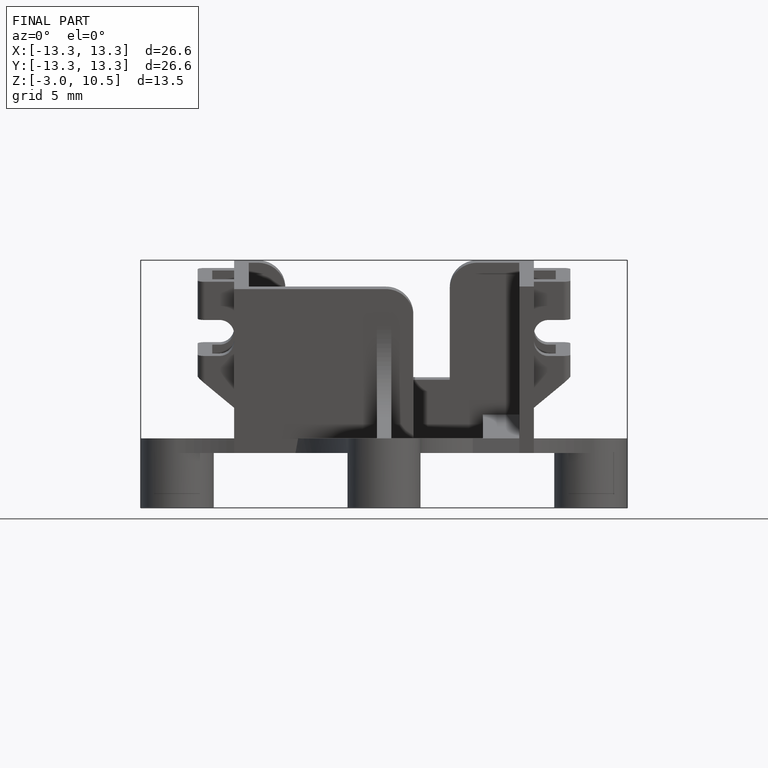
[diagram: finished part — front view with bounding-box wireframe]
